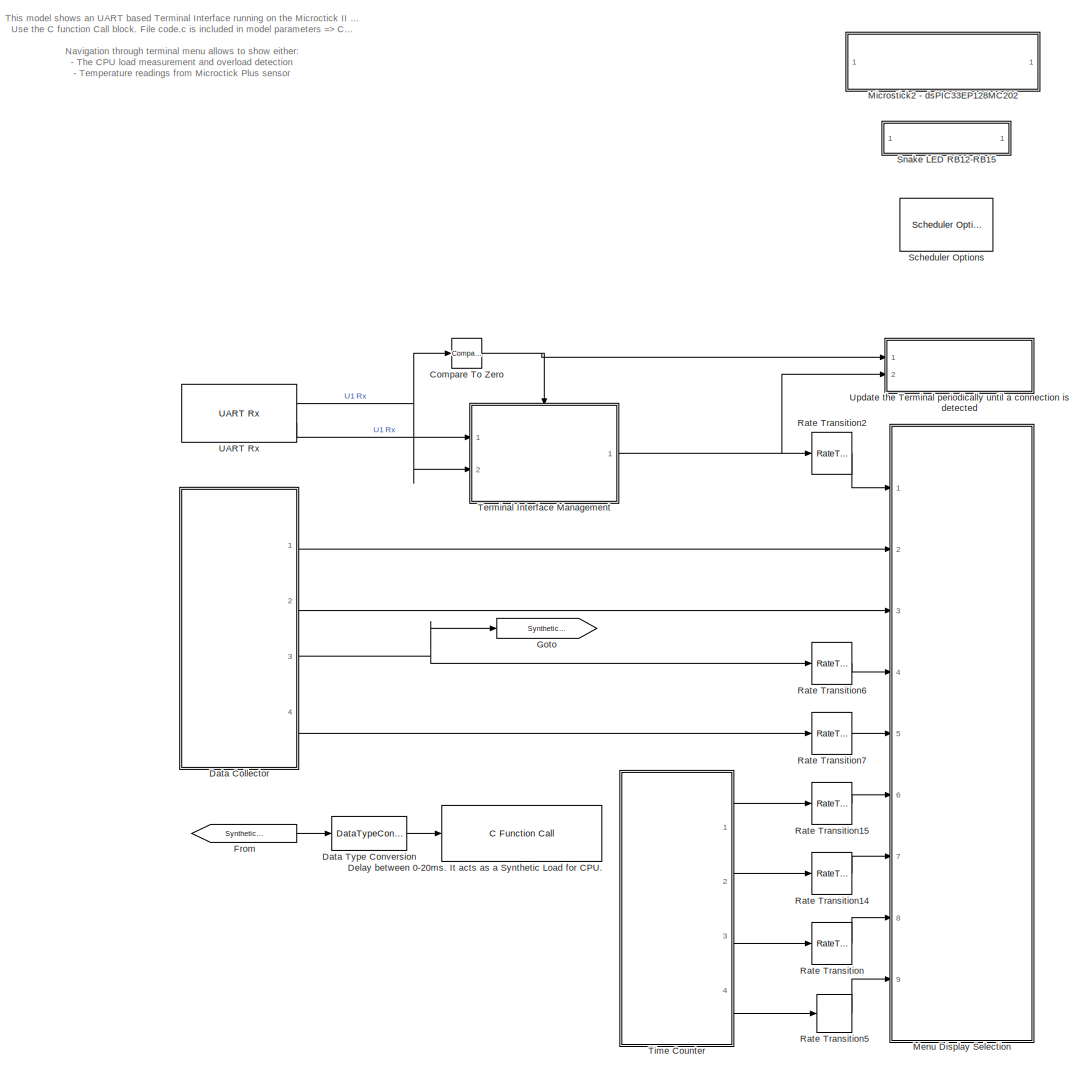
[diagram: root canvas - part 1/1, most of the canvas]
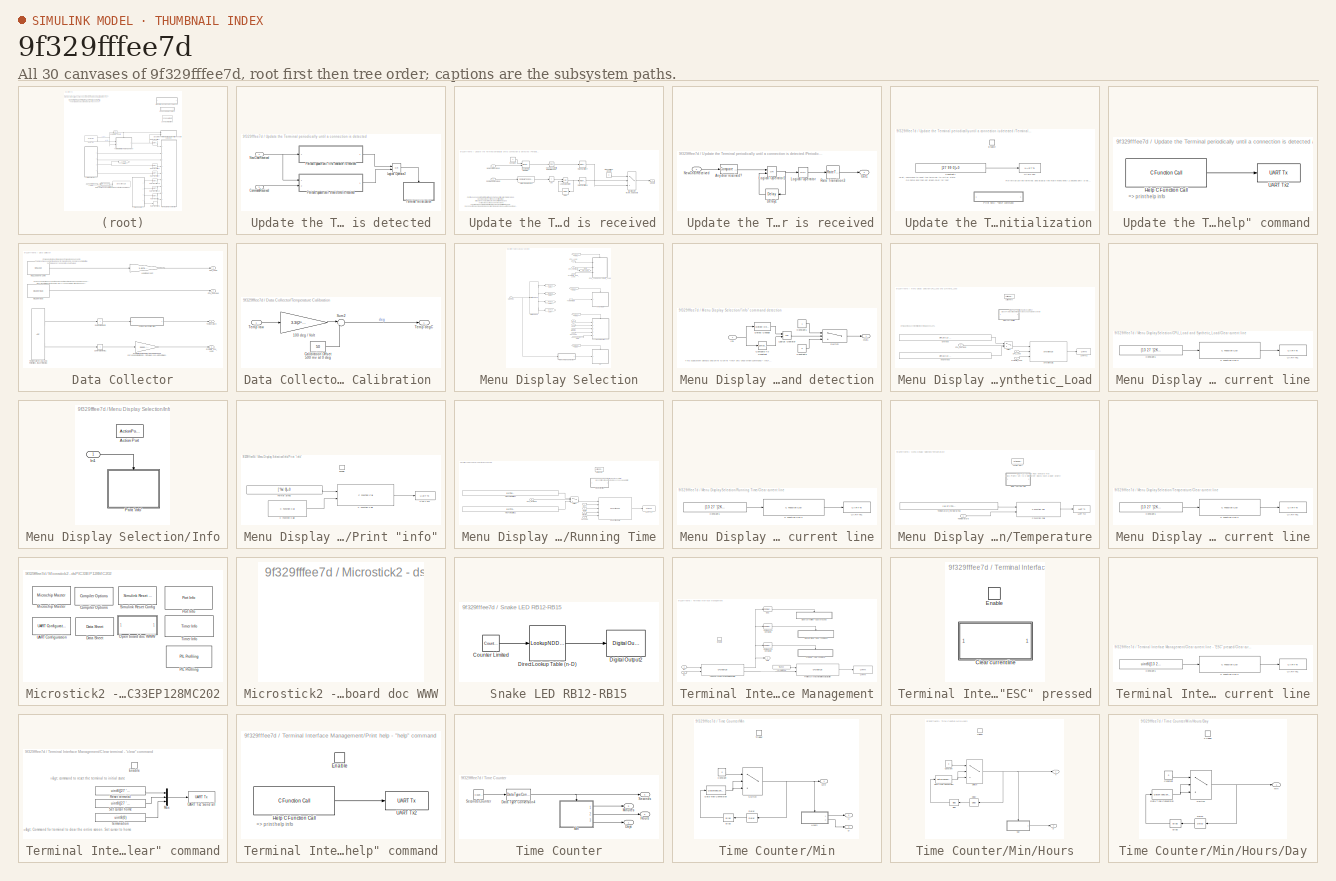
[diagram: thumbnail index - all 30 canvases of the model, root first then tree order]
MODEL slx_9f329fffee7d
KIND model
CONFIG AbsTol = auto
CONFIG EnableMultiTasking = on
CONFIG FixedStep = 0.01
CONFIG MaxStep = auto
CONFIG MinStep = auto
CONFIG RelTol = 1e-3
CONFIG SampleTimeConstraint = Unconstrained
CONFIG Solver = FixedStepDiscrete
CONFIG SolverName = FixedStepDiscrete
CONFIG StartTime = 0.0
CONFIG StopTime = inf
BLOCK [SubSystem]  Update the Terminal periodically until a connection is detected 
  Ports = [2]
  RequestExecContextInheritance = off
BLOCK [Inport]  Update the Terminal periodically until a connection is detected /CommandReceived
  Port = 2
BLOCK [Logic]  Update the Terminal periodically until a connection is detected /Logical Operator2
  AllPortsSameDT = off
  Operator = OR
  OutDataTypeStr = boolean
  Ports = [2, 1]
BLOCK [Inport]  Update the Terminal periodically until a connection is detected /NewCharReceived
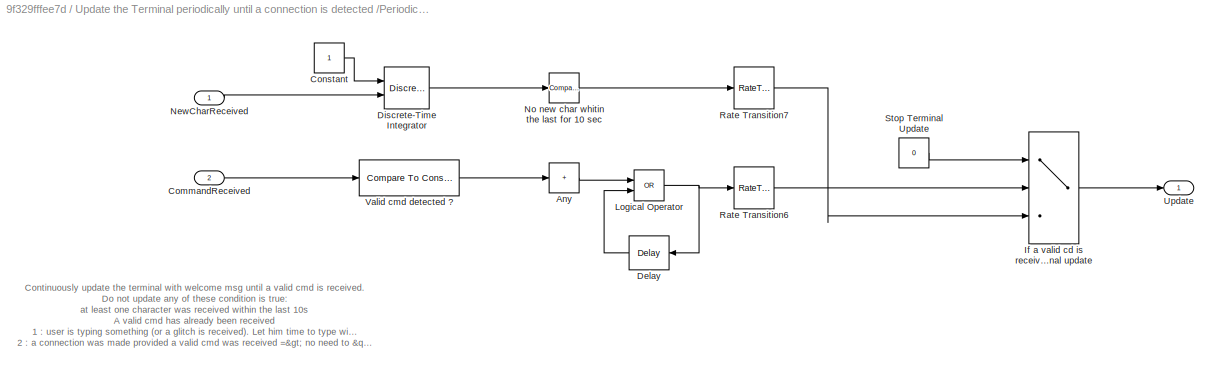
BLOCK [SubSystem]  Update the Terminal periodically until a connection is detected /Periodic update until a valid cmd is received
  Ports = [2, 1]
  RequestExecContextInheritance = off
BLOCK [Sum]  Update the Terminal periodically until a connection is detected /Periodic update until a valid cmd is received/Any
  IconShape = rectangular
  Inputs = +
  Ports = [1, 1]
BLOCK [Inport]  Update the Terminal periodically until a connection is detected /Periodic update until a valid cmd is received/CommandReceived
  Port = 2
BLOCK [Constant]  Update the Terminal periodically until a connection is detected /Periodic update until a valid cmd is received/Constant
  OutDataTypeStr = uint16
  SampleTime = .01
BLOCK [Delay]  Update the Terminal periodically until a connection is detected /Periodic update until a valid cmd is received/Delay
  DelayLength = 1
  InitialCondition = 0
  InputPortMap = u0
  Ports = [1, 1]
BLOCK [DiscreteIntegrator]  Update the Terminal periodically until a connection is detected /Periodic update until a valid cmd is received/Discrete-Time Integrator
  ExternalReset = level
  ICPrevOutput = DiscIntNeverNeededParam
  ICPrevScaledInput = DiscIntNeverNeededParam
  InitialConditionSetting = State (most efficient)
  OutDataTypeStr = fixdt(0,16)
  OutMax = [10]
  Ports = [2, 1]
  SampleTime = -1
  SaturateOnIntegerOverflow = on
  gainval = 1
BLOCK [Switch]  Update the Terminal periodically until a connection is detected /Periodic update until a valid cmd is received/If a valid cd is received, then disable the trigger for terminal update
  Criteria = u2 > Threshold
  InputSameDT = off
  SaturateOnIntegerOverflow = off
BLOCK [Logic]  Update the Terminal periodically until a connection is detected /Periodic update until a valid cmd is received/Logical Operator
  AllPortsSameDT = off
  Operator = OR
  OutDataTypeStr = boolean
  Ports = [2, 1]
BLOCK [Inport]  Update the Terminal periodically until a connection is detected /Periodic update until a valid cmd is received/NewCharReceived
BLOCK [Reference]  Update the Terminal periodically until a connection is detected /Periodic update until a valid cmd is received/No new char whitin the last for 10 sec  REF=simulink/Logic and Bit
Operations/Compare
To Constant
  Ports = [1, 1]
  SourceBlock = simulink/Logic and Bit\nOperations/Compare\nTo Constant
  SourceProductBaseCode = SL
  SourceType = Compare To Constant
BLOCK [RateTransition]  Update the Terminal periodically until a connection is detected /Periodic update until a valid cmd is received/Rate Transition6
  Deterministic = off
  Integrity = off
  OutPortSampleTime = 2
BLOCK [RateTransition]  Update the Terminal periodically until a connection is detected /Periodic update until a valid cmd is received/Rate Transition7
  Deterministic = off
  Integrity = off
  OutPortSampleTime = 2
BLOCK [Constant]  Update the Terminal periodically until a connection is detected /Periodic update until a valid cmd is received/Stop Terminal Update
  OutDataTypeStr = uint16
  SampleTime = -1
  Value = 0
BLOCK [Outport]  Update the Terminal periodically until a connection is detected /Periodic update until a valid cmd is received/Update
  VectorParamsAs1DForOutWhenUnconnected = off
BLOCK [Reference]  Update the Terminal periodically until a connection is detected /Periodic update until a valid cmd is received/Valid cmd detected ?  REF=simulink/Logic and Bit
Operations/Compare
To Constant
  Ports = [1, 1]
  SourceBlock = simulink/Logic and Bit\nOperations/Compare\nTo Constant
  SourceProductBaseCode = SL
  SourceType = Compare To Constant
BLOCK [SubSystem]  Update the Terminal periodically until a connection is detected /Periodic update until first character is received
  Ports = [1, 1]
  RequestExecContextInheritance = off
BLOCK [Reference]  Update the Terminal periodically until a connection is detected /Periodic update until first character is received/Any char received?  REF=simulink/Logic and Bit
Operations/Compare
To Constant
  Ports = [1, 1]
  SourceBlock = simulink/Logic and Bit\nOperations/Compare\nTo Constant
  SourceProductBaseCode = SL
  SourceType = Compare To Constant
BLOCK [Delay]  Update the Terminal periodically until a connection is detected /Periodic update until first character is received/Delay1
  DelayLength = 1
  InitialCondition = 0
  InputPortMap = u0
  Ports = [1, 1]
BLOCK [Logic]  Update the Terminal periodically until a connection is detected /Periodic update until first character is received/Logical Operator
  AllPortsSameDT = off
  Operator = NOT
  OutDataTypeStr = boolean
  Ports = [1, 1]
BLOCK [Logic]  Update the Terminal periodically until a connection is detected /Periodic update until first character is received/Logical Operator1
  AllPortsSameDT = off
  Operator = OR
  OutDataTypeStr = boolean
  Ports = [2, 1]
BLOCK [Inport]  Update the Terminal periodically until a connection is detected /Periodic update until first character is received/NewCharReceived
BLOCK [Outport]  Update the Terminal periodically until a connection is detected /Periodic update until first character is received/Out1
  VectorParamsAs1DForOutWhenUnconnected = off
BLOCK [RateTransition]  Update the Terminal periodically until a connection is detected /Periodic update until first character is received/Rate Transition3
  Deterministic = off
  Integrity = off
  OutPortSampleTime = 2
BLOCK [SubSystem]  Update the Terminal periodically until a connection is detected /Terminal Initialization
  Ports = [0, 0, 1]
  Priority = 2
  RequestExecContextInheritance = off
BLOCK [Constant]  Update the Terminal periodically until a connection is detected /Terminal Initialization/Constant7
  LockScale = on
  OutDataTypeStr = int8
  Priority = 0
  Value = [27 99  0]+0
BLOCK [EnablePort]  Update the Terminal periodically until a connection is detected /Terminal Initialization/Enable
  Ports = []
BLOCK [SubSystem]  Update the Terminal periodically until a connection is detected /Terminal Initialization/Print help - "help" command
  Ports = []
  Priority = 99
  RequestExecContextInheritance = off
BLOCK [Reference]  Update the Terminal periodically until a connection is detected /Terminal Initialization/Print help - "help" command/Help C Function Call  REF=MCHP_Blockset/User Functions/C Function Call
  Ports = [0, 1]
  Priority = 0
  SourceBlock = MCHP_Blockset/User Functions/C Function Call
  SourceProductName = MPLAB® Device Blocks for Simulink®
  SourceType = C Function Call
  UserDataPersistent = on
BLOCK [Reference]  Update the Terminal periodically until a connection is detected /Terminal Initialization/Print help - "help" command/UART Tx2  REF=MCHP_Blockset/BUS UART/UART Tx
  Ports = [1]
  SourceBlock = MCHP_Blockset/BUS UART/UART Tx
  SourceProductName = MPLAB® Device Blocks for Simulink®
  SourceType = UART Tx Output Driver
BLOCK [Reference]  Update the Terminal periodically until a connection is detected /Terminal Initialization/UART Tx1  REF=MCHP_Blockset/BUS UART/UART Tx
  Ports = [1]
  SourceBlock = MCHP_Blockset/BUS UART/UART Tx
  SourceProductName = MPLAB® Device Blocks for Simulink®
  SourceType = UART Tx Output Driver
BLOCK [Reference] Compare To Zero  REF=simulink/Logic and Bit
Operations/Compare
To Zero
  Ports = [1, 1]
  SourceBlock = simulink/Logic and Bit\nOperations/Compare\nTo Zero
  SourceProductBaseCode = SL
  SourceType = Compare To Zero
BLOCK [SubSystem] Data Collector
  Ports = [0, 4]
  RequestExecContextInheritance = off
BLOCK [Outport] Data Collector/CPU_Load
  VectorParamsAs1DForOutWhenUnconnected = off
BLOCK [Outport] Data Collector/CPU_Overload
  Port = 2
  VectorParamsAs1DForOutWhenUnconnected = off
BLOCK [Gain] Data Collector/Load in percent
  Gain = 3.657e-6 / .2 * 100
  OutDataTypeStr = single
  OutMax = [20]
  OutMin = [0]
  ParamDataTypeStr = Inherit: Inherit from 'Gain'
BLOCK [Reference] Data Collector/MCU Load over 10ms  REF=MCHP_Blockset/Profiling/MCU Load
  Ports = [0, 1]
  SourceBlock = MCHP_Blockset/Profiling/MCU Load
  SourceProductName = MPLAB® Device Blocks for Simulink®
  SourceType = MCU Load (Profile execution time)
BLOCK [Reference] Data Collector/MCU Overload  REF=MCHP_Blockset/Profiling/MCU Overload
  Ports = [0, 1]
  SourceBlock = MCHP_Blockset/Profiling/MCU Overload
  SourceProductName = MPLAB® Device Blocks for Simulink®
  SourceType = MCU Over-Load (Profile execution time)
BLOCK [Sum] Data Collector/Sum 64 Elements
  IconShape = rectangular
  Inputs = +
  Ports = [1, 1]
BLOCK [Sum] Data Collector/Sum 64 Elements1
  IconShape = rectangular
  Inputs = +
  Ports = [1, 1]
BLOCK [Gain] Data Collector/Synthetic CPU load Max ADC value is 65535 corresponding to 20 000us 65535(Max ADC Value) = 1024(10bit ADC value) * 64(ADC samples)
  Gain = 20000 / 65535
  OutDataTypeStr = uint16
BLOCK [Outport] Data Collector/Synthetic_CPU_Load
  Port = 3
  VectorParamsAs1DForOutWhenUnconnected = off
BLOCK [Outport] Data Collector/Temperature
  Port = 4
  VectorParamsAs1DForOutWhenUnconnected = off
BLOCK [Reference] Data Collector/Temperature (AN1) and Potentiometer (AN0) 64 X 2 Sample&Convert at each Time step  REF=MCHP_Blockset/Analog IO/ADC
  Ports = [0, 2]
  Priority = 5
  SourceBlock = MCHP_Blockset/Analog IO/ADC
  SourceProductName = MPLAB® Device Blocks for Simulink®
BLOCK [SubSystem] Data Collector/Temperature Calibration 
  Ports = [1, 1]
  RequestExecContextInheritance = off
BLOCK [Gain] Data Collector/Temperature Calibration /100 deg // Volt 
  Gain = 3.3/(2^16) * 100
  OutDataTypeStr = single
BLOCK [Constant] Data Collector/Temperature Calibration /Calibration Offset 500 mv at 0 deg
  OutDataTypeStr = Inherit: Inherit via back propagation
  SampleTime = -1
  Value = 50
BLOCK [Sum] Data Collector/Temperature Calibration /Sum2
  AccumDataTypeStr = Inherit: Same as first input
  Inputs = |+-
  OutDataTypeStr = Inherit: Same as first input
  Ports = [2, 1]
BLOCK [Outport] Data Collector/Temperature Calibration /Temp degC
  VectorParamsAs1DForOutWhenUnconnected = off
BLOCK [Inport] Data Collector/Temperature Calibration /Temp raw
BLOCK [DataTypeConversion] Data Type Conversion
  RndMeth = Floor
  SaturateOnIntegerOverflow = off
BLOCK [Reference] Delay between 0-20ms. It acts as a Synthetic Load for CPU.  REF=MCHP_Blockset/User Functions/C Function Call
  Ports = [1]
  SourceBlock = MCHP_Blockset/User Functions/C Function Call
  SourceProductName = MPLAB® Device Blocks for Simulink®
  SourceType = C Function Call
  UserDataPersistent = on
BLOCK [From] From
  GotoTag = SyntheticLoad
BLOCK [Goto] Goto
  GotoTag = SyntheticLoad
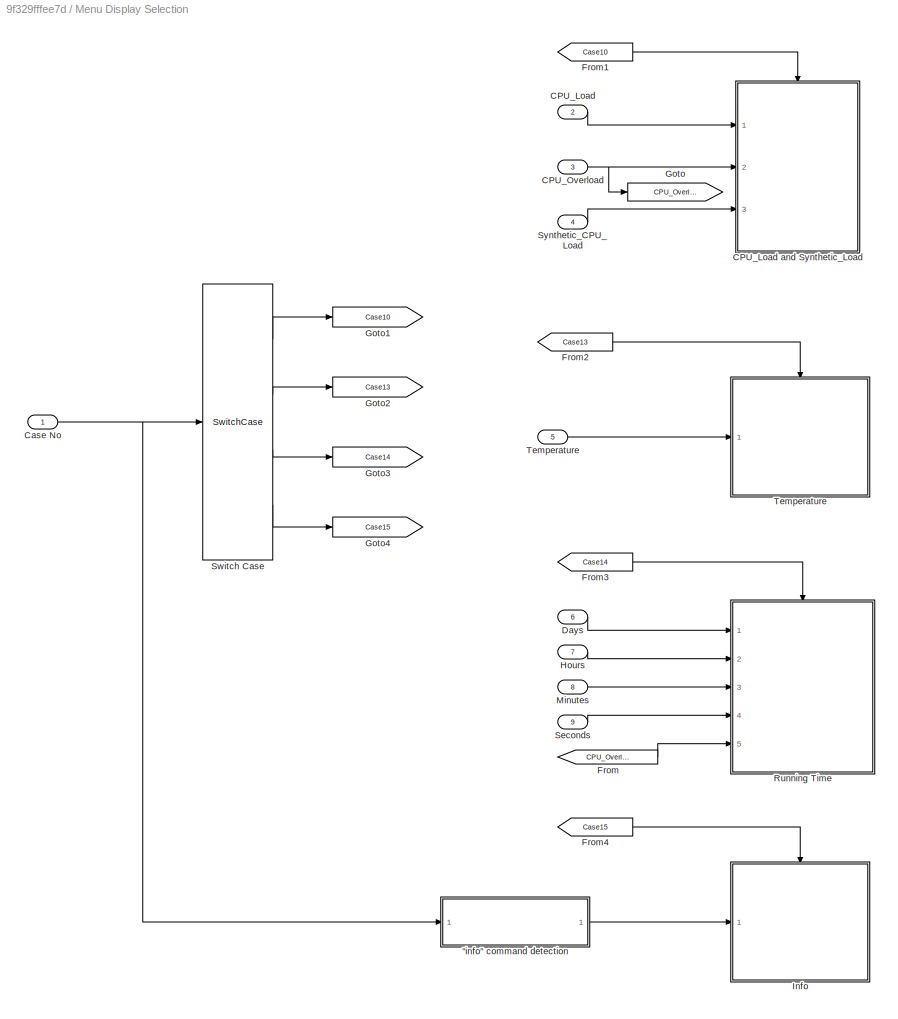
BLOCK [SubSystem] Menu Display Selection
  Ports = [9]
  RequestExecContextInheritance = off
  SystemSampleTime = 0.2
  TreatAsAtomicUnit = on
BLOCK [SubSystem] Menu Display Selection/"info" command detection
  Ports = [1, 1]
  RequestExecContextInheritance = off
BLOCK [Reference] Menu Display Selection/"info" command detection/Compare To Constant  REF=simulink/Logic and Bit
Operations/Compare
To Constant
  Ports = [1, 1]
  SourceBlock = simulink/Logic and Bit\nOperations/Compare\nTo Constant
  SourceProductBaseCode = SL
  SourceType = Compare To Constant
BLOCK [Constant] Menu Display Selection/"info" command detection/Constant1
  OutDataTypeStr = uint16
BLOCK [Constant] Menu Display Selection/"info" command detection/Constant2
  OutDataTypeStr = uint16
  Value = 0
BLOCK [Reference] Menu Display Selection/"info" command detection/Detect Change  REF=simulink/Logic and Bit
Operations/Detect
Change
  Ports = [1, 1]
  SourceBlock = simulink/Logic and Bit\nOperations/Detect\nChange
  SourceProductBaseCode = SL
  SourceType = Detect Change
BLOCK [Inport] Menu Display Selection/"info" command detection/In1
BLOCK [Logic] Menu Display Selection/"info" command detection/Logical Operator
  AllPortsSameDT = off
  OutDataTypeStr = boolean
  Ports = [2, 1]
BLOCK [Outport] Menu Display Selection/"info" command detection/Out1
  VectorParamsAs1DForOutWhenUnconnected = off
BLOCK [Switch] Menu Display Selection/"info" command detection/Switch
  Criteria = u2 > Threshold
  InputSameDT = off
  SaturateOnIntegerOverflow = off
BLOCK [Inport] Menu Display Selection/CPU_Load
  Port = 2
BLOCK [SubSystem] Menu Display Selection/CPU_Load and Synthetic_Load
  Ports = [3, 0, 0, 0, 0, 0, 0, 1]
  RequestExecContextInheritance = off
  TreatAsAtomicUnit = on
BLOCK [ActionPort] Menu Display Selection/CPU_Load and Synthetic_Load/Action Port
BLOCK [Reference] Menu Display Selection/CPU_Load and Synthetic_Load/C Function Call1  REF=MCHP_Blockset/User Functions/C Function Call
  Ports = [3, 1]
  Priority = 20
  SourceBlock = MCHP_Blockset/User Functions/C Function Call
  SourceProductName = MPLAB® Device Blocks for Simulink®
  SourceType = C Function Call
  UserDataPersistent = on
BLOCK [Inport] Menu Display Selection/CPU_Load and Synthetic_Load/CPU_Load
BLOCK [Inport] Menu Display Selection/CPU_Load and Synthetic_Load/CPU_Overload
  Port = 2
BLOCK [SubSystem] Menu Display Selection/CPU_Load and Synthetic_Load/Clear current line
  Ports = []
  Priority = 0
  RequestExecContextInheritance = off
  TreatAsAtomicUnit = on
BLOCK [Reference] Menu Display Selection/CPU_Load and Synthetic_Load/Clear current line/C Function Call2  REF=MCHP_Blockset/User Functions/C Function Call
  Ports = [1, 1]
  SourceBlock = MCHP_Blockset/User Functions/C Function Call
  SourceProductName = MPLAB® Device Blocks for Simulink®
  SourceType = C Function Call
  UserDataPersistent = on
BLOCK [Constant] Menu Display Selection/CPU_Load and Synthetic_Load/Clear current line/Constant1
  LockScale = on
  OutDataTypeStr = uint8
  Value = [13 27 '[2K' 0]+0
BLOCK [Reference] Menu Display Selection/CPU_Load and Synthetic_Load/Clear current line/UART Tx1  REF=MCHP_Blockset/BUS UART/UART Tx
  Ports = [1]
  SourceBlock = MCHP_Blockset/BUS UART/UART Tx
  SourceProductName = MPLAB® Device Blocks for Simulink®
  SourceType = UART Tx Output Driver
BLOCK [Constant] Menu Display Selection/CPU_Load and Synthetic_Load/No Overload
  LockScale = on
  OutDataTypeStr = int8
  Value = uint16([13 27 '[7;40;32mCPU Load:%3.3f%% |  Synthetic Load(us):%u (TS = 10ms) | <ESC> to exit     ' 27 '[27m'  0])
BLOCK [Constant] Menu Display Selection/CPU_Load and Synthetic_Load/Overload
  LockScale = on
  OutDataTypeStr = int8
  Value = uint16([13 27 '[30;45mCPU OverLoad:%3.3f%% |  Synthetic Load(us):%u (TS = 10ms) | <ESC> to exit' 27 '[32;40m'  0])
BLOCK [Switch] Menu Display Selection/CPU_Load and Synthetic_Load/Switch
  Criteria = u2 ~= 0
  InputSameDT = off
  SaturateOnIntegerOverflow = off
BLOCK [Inport] Menu Display Selection/CPU_Load and Synthetic_Load/Syntheticl_Load
  Port = 3
BLOCK [Reference] Menu Display Selection/CPU_Load and Synthetic_Load/UART Tx2  REF=MCHP_Blockset/BUS UART/UART Tx
  Ports = [1]
  SourceBlock = MCHP_Blockset/BUS UART/UART Tx
  SourceProductName = MPLAB® Device Blocks for Simulink®
  SourceType = UART Tx Output Driver
BLOCK [Inport] Menu Display Selection/CPU_Overload
  Port = 3
BLOCK [Inport] Menu Display Selection/Case No
BLOCK [Inport] Menu Display Selection/Days
  Port = 6
BLOCK [From] Menu Display Selection/From
  GotoTag = CPU_Overload
BLOCK [From] Menu Display Selection/From1
  GotoTag = Case10
BLOCK [From] Menu Display Selection/From2
  GotoTag = Case13
BLOCK [From] Menu Display Selection/From3
  GotoTag = Case14
BLOCK [From] Menu Display Selection/From4
  GotoTag = Case15
BLOCK [Goto] Menu Display Selection/Goto
  GotoTag = CPU_Overload
BLOCK [Goto] Menu Display Selection/Goto1
  GotoTag = Case10
BLOCK [Goto] Menu Display Selection/Goto2
  GotoTag = Case13
BLOCK [Goto] Menu Display Selection/Goto3
  GotoTag = Case14
BLOCK [Goto] Menu Display Selection/Goto4
  GotoTag = Case15
BLOCK [Inport] Menu Display Selection/Hours
  Port = 7
BLOCK [SubSystem] Menu Display Selection/Info
  Ports = [1, 0, 0, 0, 0, 0, 0, 1]
  RequestExecContextInheritance = off
  TreatAsAtomicUnit = on
BLOCK [ActionPort] Menu Display Selection/Info/Action Port
BLOCK [Inport] Menu Display Selection/Info/In1
BLOCK [SubSystem] Menu Display Selection/Info/Print "info"
  Ports = [0, 0, 1]
  RequestExecContextInheritance = off
BLOCK [Constant] Menu Display Selection/Info/Print "info"/ Format String
  LockScale = on
  OutDataTypeStr = int8
  Value = ['%s' 0]+0
BLOCK [Reference] Menu Display Selection/Info/Print "info"/C Function Call1  REF=MCHP_Blockset/User Functions/C Function Call
  Ports = [2, 1]
  SourceBlock = MCHP_Blockset/User Functions/C Function Call
  SourceProductName = MPLAB® Device Blocks for Simulink®
  SourceType = C Function Call
  UserDataPersistent = on
BLOCK [Reference] Menu Display Selection/Info/Print "info"/C Function Call2  REF=MCHP_Blockset/User Functions/C Function Call
  Ports = [0, 1]
  SourceBlock = MCHP_Blockset/User Functions/C Function Call
  SourceProductName = MPLAB® Device Blocks for Simulink®
  SourceType = C Function Call
  UserDataPersistent = on
BLOCK [EnablePort] Menu Display Selection/Info/Print "info"/Enable
  Ports = []
BLOCK [Reference] Menu Display Selection/Info/Print "info"/UART Tx2  REF=MCHP_Blockset/BUS UART/UART Tx
  Ports = [1]
  SourceBlock = MCHP_Blockset/BUS UART/UART Tx
  SourceProductName = MPLAB® Device Blocks for Simulink®
  SourceType = UART Tx Output Driver
BLOCK [Inport] Menu Display Selection/Minutes
  Port = 8
BLOCK [SubSystem] Menu Display Selection/Running Time
  Ports = [5, 0, 0, 0, 0, 0, 0, 1]
  RequestExecContextInheritance = off
  TreatAsAtomicUnit = on
BLOCK [ActionPort] Menu Display Selection/Running Time/Action Port
BLOCK [Reference] Menu Display Selection/Running Time/C Function Call1  REF=MCHP_Blockset/User Functions/C Function Call
  Ports = [5, 1]
  SourceBlock = MCHP_Blockset/User Functions/C Function Call
  SourceProductName = MPLAB® Device Blocks for Simulink®
  SourceType = C Function Call
  UserDataPersistent = on
BLOCK [Inport] Menu Display Selection/Running Time/CPU_Overload
  Port = 5
BLOCK [SubSystem] Menu Display Selection/Running Time/Clear current line
  Ports = []
  Priority = 0
  RequestExecContextInheritance = off
  TreatAsAtomicUnit = on
BLOCK [Reference] Menu Display Selection/Running Time/Clear current line/C Function Call2  REF=MCHP_Blockset/User Functions/C Function Call
  Ports = [1, 1]
  SourceBlock = MCHP_Blockset/User Functions/C Function Call
  SourceProductName = MPLAB® Device Blocks for Simulink®
  SourceType = C Function Call
  UserDataPersistent = on
BLOCK [Constant] Menu Display Selection/Running Time/Clear current line/Constant1
  LockScale = on
  OutDataTypeStr = uint8
  Value = [13 27 '[2K' 0]+0
BLOCK [Reference] Menu Display Selection/Running Time/Clear current line/UART Tx1  REF=MCHP_Blockset/BUS UART/UART Tx
  Ports = [1]
  SourceBlock = MCHP_Blockset/BUS UART/UART Tx
  SourceProductName = MPLAB® Device Blocks for Simulink®
  SourceType = UART Tx Output Driver
BLOCK [Inport] Menu Display Selection/Running Time/Days
BLOCK [Inport] Menu Display Selection/Running Time/Hours
  Port = 2
BLOCK [Inport] Menu Display Selection/Running Time/Minutes
  Port = 3
BLOCK [Inport] Menu Display Selection/Running Time/Seconds
  Port = 4
BLOCK [Switch] Menu Display Selection/Running Time/Switch
  Criteria = u2 ~= 0
  InputSameDT = off
  SaturateOnIntegerOverflow = off
BLOCK [Constant] Menu Display Selection/Running Time/Time Format String1
  LockScale = on
  OutDataTypeStr = int8
  Value = [13 27 '[30;45mRunning Time: %udays : %02uh : %02umin : %02usec |<ESC>| OVERLOAD! ' 27 '[32;40m'  0]+0
BLOCK [Constant] Menu Display Selection/Running Time/Time Format String2
  LockScale = on
  OutDataTypeStr = int8
  Value = [13 27 '[7mRunning Time: %udays : %02uh : %02umin : %02usec | Press <ESC> to exit    ' 27 '[27m'  0]+0
BLOCK [Reference] Menu Display Selection/Running Time/UART Tx2  REF=MCHP_Blockset/BUS UART/UART Tx
  Ports = [1]
  SourceBlock = MCHP_Blockset/BUS UART/UART Tx
  SourceProductName = MPLAB® Device Blocks for Simulink®
  SourceType = UART Tx Output Driver
BLOCK [Inport] Menu Display Selection/Seconds
  Port = 9
BLOCK [SwitchCase] Menu Display Selection/Switch Case
  CaseConditions = {10,13,14,15}
  Ports = [1, 4]
  ShowDefaultCase = off
BLOCK [Inport] Menu Display Selection/Synthetic_CPU_Load
  Port = 4
BLOCK [SubSystem] Menu Display Selection/Temperature
  Ports = [1, 0, 0, 0, 0, 0, 0, 1]
  RequestExecContextInheritance = off
  TreatAsAtomicUnit = on
BLOCK [Inport] Menu Display Selection/Temperature 
  Port = 5
BLOCK [ActionPort] Menu Display Selection/Temperature/Action Port
BLOCK [Reference] Menu Display Selection/Temperature/C Function Call1  REF=MCHP_Blockset/User Functions/C Function Call
  Ports = [2, 1]
  SourceBlock = MCHP_Blockset/User Functions/C Function Call
  SourceProductName = MPLAB® Device Blocks for Simulink®
  SourceType = C Function Call
  UserDataPersistent = on
BLOCK [SubSystem] Menu Display Selection/Temperature/Clear current line
  Ports = []
  Priority = 0
  RequestExecContextInheritance = off
  TreatAsAtomicUnit = on
BLOCK [Reference] Menu Display Selection/Temperature/Clear current line/C Function Call2  REF=MCHP_Blockset/User Functions/C Function Call
  Ports = [1, 1]
  SourceBlock = MCHP_Blockset/User Functions/C Function Call
  SourceProductName = MPLAB® Device Blocks for Simulink®
  SourceType = C Function Call
  UserDataPersistent = on
BLOCK [Constant] Menu Display Selection/Temperature/Clear current line/Constant1
  LockScale = on
  OutDataTypeStr = uint8
  Value = [13 27 '[2K' 0]+0
BLOCK [Reference] Menu Display Selection/Temperature/Clear current line/UART Tx1  REF=MCHP_Blockset/BUS UART/UART Tx
  Ports = [1]
  SourceBlock = MCHP_Blockset/BUS UART/UART Tx
  SourceProductName = MPLAB® Device Blocks for Simulink®
  SourceType = UART Tx Output Driver
BLOCK [Inport] Menu Display Selection/Temperature/Temperature
BLOCK [Constant] Menu Display Selection/Temperature/Temperature_FormatString
  LockScale = on
  OutDataTypeStr = int8
  Value = [13 27 '[7m Temperature: %3.3f *C  Press <ESC> to exit' 27 '[27m'  0]+0
BLOCK [Reference] Menu Display Selection/Temperature/UART Tx2  REF=MCHP_Blockset/BUS UART/UART Tx
  Ports = [1]
  SourceBlock = MCHP_Blockset/BUS UART/UART Tx
  SourceProductName = MPLAB® Device Blocks for Simulink®
  SourceType = UART Tx Output Driver
BLOCK [SubSystem] Microstick2 - dsPIC33EP128MC202
  Ports = []
  RequestExecContextInheritance = off
BLOCK [Reference] Microstick2 - dsPIC33EP128MC202/Compiler Options  REF=MCHP_Blockset/System Configuration/Compiler Options
  Ports = []
  Priority = 1
  SourceBlock = MCHP_Blockset/System Configuration/Compiler Options
  SourceProductName = MPLAB® Device Blocks for Simulink®
BLOCK [Reference] Microstick2 - dsPIC33EP128MC202/Data Sheet  REF=MCHP_Blockset/System Info/Data Sheet
  AttributesFormatString = %<cpy_MCHP_Id>
  Ports = []
  SourceBlock = MCHP_Blockset/System Info/Data Sheet
  SourceProductName = MPLAB® Device Blocks for Simulink®
BLOCK [Reference] Microstick2 - dsPIC33EP128MC202/Microchip Master  REF=MCHP_Blockset/System Configuration/Microchip Master
  Ports = []
  Priority = 1
  SourceBlock = MCHP_Blockset/System Configuration/Microchip Master
  SourceProductName = MPLAB® Device Blocks for Simulink®
BLOCK [SubSystem] Microstick2 - dsPIC33EP128MC202/Open board doc WWW
  OpenFcn = web('www.microchip.com/www.microchip.com/en556208','-browser');\npause(1);\nweb('www.microchip.com/TCAD0014178791','-browser');
  Ports = []
  RequestExecContextInheritance = off
BLOCK [Reference] Microstick2 - dsPIC33EP128MC202/PIL Profiling  REF=MCHP_Blockset/Profiling/PIL Profiling
  Ports = []
  SourceBlock = MCHP_Blockset/Profiling/PIL Profiling
  SourceProductName = MPLAB® Device Blocks for Simulink®
  SourceType = Timer Configuration
BLOCK [Reference] Microstick2 - dsPIC33EP128MC202/Port Info  REF=MCHP_Blockset/System Info/Port Info
  Ports = []
  SourceBlock = MCHP_Blockset/System Info/Port Info
  SourceProductName = MPLAB® Device Blocks for Simulink®
BLOCK [Reference] Microstick2 - dsPIC33EP128MC202/Simulink Reset Config  REF=MCHP_Blockset/System Configuration/Simulink Reset
Config
  Ports = []
  SourceBlock = MCHP_Blockset/System Configuration/Simulink Reset\nConfig
  SourceProductName = MPLAB® Device Blocks for Simulink®
BLOCK [Reference] Microstick2 - dsPIC33EP128MC202/Timer Info  REF=MCHP_Blockset/System Info/Timer Info
  Ports = []
  SourceBlock = MCHP_Blockset/System Info/Timer Info
  SourceProductName = MPLAB® Device Blocks for Simulink®
BLOCK [Reference] Microstick2 - dsPIC33EP128MC202/UART Configuration  REF=MCHP_Blockset/BUS UART/UART Configuration
  Ports = []
  SourceBlock = MCHP_Blockset/BUS UART/UART Configuration
  SourceProductName = MPLAB® Device Blocks for Simulink®
  SourceType = Configuration for UART peripheral
BLOCK [RateTransition] Rate Transition
  Deterministic = off
  OutPortSampleTimeOpt = Inherit
BLOCK [RateTransition] Rate Transition14
  Deterministic = off
  OutPortSampleTimeOpt = Inherit
BLOCK [RateTransition] Rate Transition15
  Deterministic = off
  OutPortSampleTimeOpt = Inherit
BLOCK [RateTransition] Rate Transition2
  Deterministic = off
  OutPortSampleTimeOpt = Inherit
BLOCK [RateTransition] Rate Transition5
  Deterministic = off
  OutPortSampleTimeOpt = Inherit
BLOCK [RateTransition] Rate Transition6
  Deterministic = off
  OutPortSampleTimeOpt = Inherit
BLOCK [RateTransition] Rate Transition7
  Deterministic = off
  OutPortSampleTimeOpt = Inherit
BLOCK [Reference] Scheduler Options  REF=MCHP_Blockset/System Configuration/Scheduler Options
  Ports = []
  SourceBlock = MCHP_Blockset/System Configuration/Scheduler Options
  SourceProductName = MPLAB® Device Blocks for Simulink®
  SourceType = Scheduler Options
BLOCK [SubSystem] Snake LED RB12-RB15
  Ports = []
  RequestExecContextInheritance = off
BLOCK [Reference] Snake LED RB12-RB15/Counter Limited   REF=simulink/Sources/Counter
Limited
  Ports = [0, 1]
  SourceBlock = simulink/Sources/Counter\nLimited
  SourceProductBaseCode = SL
  SourceType = Counter Limited
BLOCK [Reference] Snake LED RB12-RB15/Digital Output2  REF=MCHP_Blockset/Digital IO/Digital Output
  Ports = [1]
  SourceBlock = MCHP_Blockset/Digital IO/Digital Output
  SourceProductName = MPLAB® Device Blocks for Simulink®
BLOCK [LookupNDDirect] Snake LED RB12-RB15/Direct Lookup Table (n-D)
  NumberOfTableDimensions = 1
  Ports = [1, 1]
  Table = [ 32768 16384 8192 4096 8192 16384]
  TableDataTypeStr = uint16
BLOCK [SubSystem] Terminal Interface Management
  Ports = [2, 1, 1]
  RequestExecContextInheritance = off
BLOCK [Reference] Terminal Interface Management/Add every bytes received to the buffer  REF=MCHP_Blockset/User Functions/C Function Call
  Ports = [2, 2]
  Priority = 0
  SourceBlock = MCHP_Blockset/User Functions/C Function Call
  SourceProductName = MPLAB® Device Blocks for Simulink®
  SourceType = C Function Call
  UserDataPersistent = on
BLOCK [SubSystem] Terminal Interface Management/Clear current line - "ESC" pressed
  Ports = [0, 0, 1]
  Priority = 1
  RequestExecContextInheritance = off
  TreatAsAtomicUnit = on
BLOCK [SubSystem] Terminal Interface Management/Clear current line - "ESC" pressed/Clear current line
  Ports = []
  Priority = 0
  RequestExecContextInheritance = off
  TreatAsAtomicUnit = on
BLOCK [Reference] Terminal Interface Management/Clear current line - "ESC" pressed/Clear current line/C Function Call2  REF=MCHP_Blockset/User Functions/C Function Call
  Ports = [1, 1]
  SourceBlock = MCHP_Blockset/User Functions/C Function Call
  SourceProductName = MPLAB® Device Blocks for Simulink®
  SourceType = C Function Call
  UserDataPersistent = on
BLOCK [Constant] Terminal Interface Management/Clear current line - "ESC" pressed/Clear current line/Constant1
  LockScale = on
  OutDataTypeStr = uint8
  Value = uint8([13 27 '[2K' 0])
BLOCK [Reference] Terminal Interface Management/Clear current line - "ESC" pressed/Clear current line/UART Tx1  REF=MCHP_Blockset/BUS UART/UART Tx
  Ports = [1]
  SourceBlock = MCHP_Blockset/BUS UART/UART Tx
  SourceProductName = MPLAB® Device Blocks for Simulink®
  SourceType = UART Tx Output Driver
BLOCK [EnablePort] Terminal Interface Management/Clear current line - "ESC" pressed/Enable
  Ports = []
BLOCK [SubSystem] Terminal Interface Management/Clear terminal - "clear" command
  Ports = [0, 0, 1]
  Priority = 100
  RequestExecContextInheritance = off
BLOCK [EnablePort] Terminal Interface Management/Clear terminal - "clear" command/Enable
  Ports = []
BLOCK [Mux] Terminal Interface Management/Clear terminal - "clear" command/Mux
  DisplayOption = bar
  Inputs = 3
  Ports = [3, 1]
BLOCK [Constant] Terminal Interface Management/Clear terminal - "clear" command/Reset terminal
  LockScale = on
  Priority = 0
  Value = uint8([27 '[2J'])
BLOCK [Constant] Terminal Interface Management/Clear terminal - "clear" command/Set cursor home
  LockScale = on
  Priority = 0
  Value = uint8([27 '[H'])
BLOCK [Reference] Terminal Interface Management/Clear terminal - "clear" command/UART Tx1 Send all  REF=MCHP_Blockset/BUS UART/UART Tx
  Ports = [1]
  SourceBlock = MCHP_Blockset/BUS UART/UART Tx
  SourceProductName = MPLAB® Device Blocks for Simulink®
  SourceType = UART Tx Output Driver
BLOCK [Constant] Terminal Interface Management/Clear terminal - "clear" command/termination
  LockScale = on
  Priority = 0
  Value = uint8(0)
BLOCK [Reference] Terminal Interface Management/Compare To Constant1  REF=simulink/Logic and Bit
Operations/Compare
To Constant
  Ports = [1, 1]
  SourceBlock = simulink/Logic and Bit\nOperations/Compare\nTo Constant
  SourceProductBaseCode = SL
  SourceType = Compare To Constant
BLOCK [Reference] Terminal Interface Management/Compare To Constant2  REF=simulink/Logic and Bit
Operations/Compare
To Constant
  Ports = [1, 1]
  SourceBlock = simulink/Logic and Bit\nOperations/Compare\nTo Constant
  SourceProductBaseCode = SL
  SourceType = Compare To Constant
BLOCK [Reference] Terminal Interface Management/ESC  REF=simulink/Logic and Bit
Operations/Compare
To Constant
  Ports = [1, 1]
  SourceBlock = simulink/Logic and Bit\nOperations/Compare\nTo Constant
  SourceProductBaseCode = SL
  SourceType = Compare To Constant
BLOCK [EnablePort] Terminal Interface Management/Enable
  Ports = []
BLOCK [Constant] Terminal Interface Management/FormatString 
  LockScale = on
  OutDataTypeStr = uint8
  Priority = 15
  Value = ['%s' 0]+0
BLOCK [Inport] Terminal Interface Management/In1
BLOCK [Inport] Terminal Interface Management/In2
  Port = 2
BLOCK [Outport] Terminal Interface Management/Out1
  VectorParamsAs1DForOutWhenUnconnected = off
BLOCK [SubSystem] Terminal Interface Management/Print help - "help" command
  Ports = [0, 0, 1]
  Priority = 99
  RequestExecContextInheritance = off
BLOCK [EnablePort] Terminal Interface Management/Print help - "help" command/Enable
  Ports = []
BLOCK [Reference] Terminal Interface Management/Print help - "help" command/Help C Function Call  REF=MCHP_Blockset/User Functions/C Function Call
  Ports = [0, 1]
  Priority = 0
  SourceBlock = MCHP_Blockset/User Functions/C Function Call
  SourceProductName = MPLAB® Device Blocks for Simulink®
  SourceType = C Function Call
  UserDataPersistent = on
BLOCK [Reference] Terminal Interface Management/Print help - "help" command/UART Tx2  REF=MCHP_Blockset/BUS UART/UART Tx
  Ports = [1]
  SourceBlock = MCHP_Blockset/BUS UART/UART Tx
  SourceProductName = MPLAB® Device Blocks for Simulink®
  SourceType = UART Tx Output Driver
BLOCK [Reference] Terminal Interface Management/Print the current content of the output buffer  REF=MCHP_Blockset/User Functions/C Function Call
  Ports = [2, 1]
  Priority = 16
  SourceBlock = MCHP_Blockset/User Functions/C Function Call
  SourceProductName = MPLAB® Device Blocks for Simulink®
  SourceType = C Function Call
  UserDataPersistent = on
BLOCK [Reference] Terminal Interface Management/UART Tx  REF=MCHP_Blockset/BUS UART/UART Tx
  Ports = [1]
  Priority = 17
  SourceBlock = MCHP_Blockset/BUS UART/UART Tx
  SourceProductName = MPLAB® Device Blocks for Simulink®
  SourceType = UART Tx Output Driver
BLOCK [SubSystem] Time Counter
  Ports = [0, 4]
  RTWSystemCode = Reusable function
  RequestExecContextInheritance = off
  TreatAsAtomicUnit = on
BLOCK [DataTypeConversion] Time Counter/Data Type Conversion4
  ConvertRealWorld = Stored Integer (SI)
  OutDataTypeStr = uint16
  RndMeth = Floor
  SaturateOnIntegerOverflow = off
BLOCK [Outport] Time Counter/Days
  VectorParamsAs1DForOutWhenUnconnected = off
BLOCK [Outport] Time Counter/Hours
  Port = 2
  VectorParamsAs1DForOutWhenUnconnected = off
BLOCK [SubSystem] Time Counter/Min
  Ports = [0, 3, 0, 1]
  RequestExecContextInheritance = off
BLOCK [Bias] Time Counter/Min/Bias
  Bias = 1
  SaturateOnIntegerOverflow = off
BLOCK [Constant] Time Counter/Min/Constant
  OutDataTypeStr = uint16
  Value = 0
BLOCK [Outport] Time Counter/Min/D
  Port = 3
  VectorParamsAs1DForOutWhenUnconnected = off
BLOCK [DataTypeConversion] Time Counter/Min/Data Type Conversion
  OutDataTypeStr = uint16
  RndMeth = Floor
  SaturateOnIntegerOverflow = off
BLOCK [Delay] Time Counter/Min/Delay
  DelayLength = 1
  InitialCondition = 0
  InputPortMap = u0
  Ports = [1, 1]
BLOCK [Outport] Time Counter/Min/H
  Port = 2
  VectorParamsAs1DForOutWhenUnconnected = off
BLOCK [SubSystem] Time Counter/Min/Hours
  Ports = [0, 2, 0, 1]
  RequestExecContextInheritance = off
BLOCK [Bias] Time Counter/Min/Hours/Bias
  Bias = 1
  SaturateOnIntegerOverflow = off
BLOCK [Constant] Time Counter/Min/Hours/Constant
  OutDataTypeStr = uint16
  Value = 0
BLOCK [Outport] Time Counter/Min/Hours/D
  Port = 2
  VectorParamsAs1DForOutWhenUnconnected = off
BLOCK [DataTypeConversion] Time Counter/Min/Hours/Data Type Conversion
  OutDataTypeStr = uint16
  RndMeth = Floor
  SaturateOnIntegerOverflow = off
BLOCK [SubSystem] Time Counter/Min/Hours/Day
  Ports = [0, 1, 0, 1]
  RequestExecContextInheritance = off
BLOCK [Bias] Time Counter/Min/Hours/Day/Bias
  Bias = 1
  SaturateOnIntegerOverflow = off
BLOCK [Constant] Time Counter/Min/Hours/Day/Constant
  OutDataTypeStr = uint16
  Value = 0
BLOCK [DataTypeConversion] Time Counter/Min/Hours/Day/Data Type Conversion
  OutDataTypeStr = uint16
  RndMeth = Floor
  SaturateOnIntegerOverflow = off
BLOCK [Delay] Time Counter/Min/Hours/Day/Delay
  DelayLength = 1
  InitialCondition = 0
  InputPortMap = u0
  Ports = [1, 1]
BLOCK [Outport] Time Counter/Min/Hours/Day/Min
  VectorParamsAs1DForOutWhenUnconnected = off
BLOCK [Switch] Time Counter/Min/Hours/Day/Switch
  InputSameDT = off
  SaturateOnIntegerOverflow = off
  Threshold = 60
BLOCK [TriggerPort] Time Counter/Min/Hours/Day/Trigger
  PortDimensions = 1
  Ports = []
  StatesWhenEnabling = held
  TriggerType = falling
  VariantControl = Variant
BLOCK [Delay] Time Counter/Min/Hours/Delay
  DelayLength = 1
  InitialCondition = 0
  InputPortMap = u0
  Ports = [1, 1]
BLOCK [Switch] Time Counter/Min/Hours/Switch
  InputSameDT = off
  SaturateOnIntegerOverflow = off
  Threshold = 60
BLOCK [TriggerPort] Time Counter/Min/Hours/Trigger
  PortDimensions = 1
  Ports = []
  StatesWhenEnabling = held
  TriggerType = falling
  VariantControl = Variant
BLOCK [Outport] Time Counter/Min/Hours/h
  VectorParamsAs1DForOutWhenUnconnected = off
BLOCK [Outport] Time Counter/Min/Min
  VectorParamsAs1DForOutWhenUnconnected = off
BLOCK [Switch] Time Counter/Min/Switch
  InputSameDT = off
  SaturateOnIntegerOverflow = off
  Threshold = 60
BLOCK [TriggerPort] Time Counter/Min/Trigger
  PortDimensions = 1
  Ports = []
  StatesWhenEnabling = held
  TriggerType = falling
  VariantControl = Variant
BLOCK [Outport] Time Counter/Minutes
  Port = 3
  VectorParamsAs1DForOutWhenUnconnected = off
BLOCK [Outport] Time Counter/Seconds
  Port = 4
  VectorParamsAs1DForOutWhenUnconnected = off
BLOCK [Reference] Time Counter/Seconds Counter  REF=simulink/Sources/Counter
Limited
  Ports = [0, 1]
  SourceBlock = simulink/Sources/Counter\nLimited
  SourceProductBaseCode = SL
  SourceType = Counter Limited
BLOCK [Reference] UART Rx  REF=MCHP_Blockset/BUS UART/UART Rx
  Ports = [0, 2]
  SourceBlock = MCHP_Blockset/BUS UART/UART Rx
  SourceProductName = MPLAB® Device Blocks for Simulink®
  SourceType = UART Rx Input Driver
ANNOTATION (root): This model shows an UART based Terminal Interface running on the Microctick II Plus Development Board. Use the C function Call block. File code.c is included in model parameters => Code Generation => Custom code tab. Navigation through terminal menu allows to show either: - The CPU load measurement and overload detection - Temperature readings from Microctick Plus sensor - Time elapsed since syste...<+514ch>
ANNOTATION  Update the Terminal periodically until a connection is detected /Periodic update until a valid cmd is received: Continuously update the terminal with welcome msg until a valid cmd is received. Do not update any of these condition is true: at least one character was received within the last 10s A valid cmd has already been received 1 : user is typing something (or a glitch is received). Let him time to type without reset the terminal. 2 : a connection was made provided a valid cmd was received => no need to ...<+34ch>
ANNOTATION  Update the Terminal periodically until a connection is detected /Terminal Initialization: => command to r eset the terminal to initial state: Go home and then set green color for text
ANNOTATION  Update the Terminal periodically until a connection is detected /Terminal Initialization: Re-initialize the terminal and display the main menu every 2 second until a valid cmd is received. This allows initializing hot plugged terminal.
ANNOTATION  Update the Terminal periodically until a connection is detected /Terminal Initialization/Print help - "help" command: => print help info
ANNOTATION Data Collector: CPU load output overflows when CPU load is above 240ms The block measurement beeing performed at 200ms (0.2s block sampling time) 240ms load correspond to 110% CPU load
ANNOTATION Data Collector: CPU overload is 0 if no overload took place between two MCU Overload block execution. Otherwise, bits field output code for TID(s) responsible for at least one overload.
ANNOTATION Menu Display Selection/"info" command detection: This subsystem detects and print to print "info" only once when command " info" is issued. Otherwise, the information will be displayed continuously at each time step.
ANNOTATION Menu Display Selection/CPU_Load and Synthetic_Load: CPU load measurement might overflow above 120%
ANNOTATION Menu Display Selection/CPU_Load and Synthetic_Load: Clear current line must execute first Block Proirity set to 0 while other blocks have a lower priority
ANNOTATION Menu Display Selection/Running Time: Clear current line must execute first Block Proirity set to 0 while other blocks have a lower priority
ANNOTATION Menu Display Selection/Temperature: Clear current line must execute first Block Proirity set to 0 while other blocks have a lower priority
ANNOTATION Terminal Interface Management/Clear terminal - "clear" command: => Command for terminal to clear the entire screen. Set cursor to home
ANNOTATION Terminal Interface Management/Clear terminal - "clear" command: => command to r eset the terminal to initial state
ANNOTATION Terminal Interface Management/Print help - "help" command: => print help info
LINE  Update the Terminal periodically until a connection is detected /CommandReceived:1 ->  Update the Terminal periodically until a connection is detected /Periodic update until a valid cmd is received:2
LINE  Update the Terminal periodically until a connection is detected /Logical Operator2:1 ->  Update the Terminal periodically until a connection is detected /Terminal Initialization:enable
NET  Update the Terminal periodically until a connection is detected /NewCharReceived:1 ->  Update the Terminal periodically until a connection is detected /Periodic update until a valid cmd is received:1,  Update the Terminal periodically until a connection is detected /Periodic update until first character is received:1
LINE  Update the Terminal periodically until a connection is detected /Periodic update until a valid cmd is received/Any:1 ->  Update the Terminal periodically until a connection is detected /Periodic update until a valid cmd is received/Logical Operator:1
LINE  Update the Terminal periodically until a connection is detected /Periodic update until a valid cmd is received/CommandReceived:1 ->  Update the Terminal periodically until a connection is detected /Periodic update until a valid cmd is received/Valid cmd detected ?:1
LINE  Update the Terminal periodically until a connection is detected /Periodic update until a valid cmd is received/Constant:1 ->  Update the Terminal periodically until a connection is detected /Periodic update until a valid cmd is received/Discrete-Time Integrator:1
LINE  Update the Terminal periodically until a connection is detected /Periodic update until a valid cmd is received/Delay:1 ->  Update the Terminal periodically until a connection is detected /Periodic update until a valid cmd is received/Logical Operator:2
LINE  Update the Terminal periodically until a connection is detected /Periodic update until a valid cmd is received/Discrete-Time Integrator:1 ->  Update the Terminal periodically until a connection is detected /Periodic update until a valid cmd is received/No new char whitin the last for 10 sec:1
LINE  Update the Terminal periodically until a connection is detected /Periodic update until a valid cmd is received/If a valid cd is received, then disable the trigger for terminal update:1 ->  Update the Terminal periodically until a connection is detected /Periodic update until a valid cmd is received/Update:1
NET  Update the Terminal periodically until a connection is detected /Periodic update until a valid cmd is received/Logical Operator:1 ->  Update the Terminal periodically until a connection is detected /Periodic update until a valid cmd is received/Delay:1,  Update the Terminal periodically until a connection is detected /Periodic update until a valid cmd is received/Rate Transition6:1
LINE  Update the Terminal periodically until a connection is detected /Periodic update until a valid cmd is received/NewCharReceived:1 ->  Update the Terminal periodically until a connection is detected /Periodic update until a valid cmd is received/Discrete-Time Integrator:2
LINE  Update the Terminal periodically until a connection is detected /Periodic update until a valid cmd is received/No new char whitin the last for 10 sec:1 ->  Update the Terminal periodically until a connection is detected /Periodic update until a valid cmd is received/Rate Transition7:1
LINE  Update the Terminal periodically until a connection is detected /Periodic update until a valid cmd is received/Rate Transition6:1 ->  Update the Terminal periodically until a connection is detected /Periodic update until a valid cmd is received/If a valid cd is received, then disable the trigger for terminal update:2
LINE  Update the Terminal periodically until a connection is detected /Periodic update until a valid cmd is received/Rate Transition7:1 ->  Update the Terminal periodically until a connection is detected /Periodic update until a valid cmd is received/If a valid cd is received, then disable the trigger for terminal update:3
LINE  Update the Terminal periodically until a connection is detected /Periodic update until a valid cmd is received/Stop Terminal Update:1 ->  Update the Terminal periodically until a connection is detected /Periodic update until a valid cmd is received/If a valid cd is received, then disable the trigger for terminal update:1
LINE  Update the Terminal periodically until a connection is detected /Periodic update until a valid cmd is received/Valid cmd detected ?:1 ->  Update the Terminal periodically until a connection is detected /Periodic update until a valid cmd is received/Any:1
LINE  Update the Terminal periodically until a connection is detected /Periodic update until a valid cmd is received:1 ->  Update the Terminal periodically until a connection is detected /Logical Operator2:2
LINE  Update the Terminal periodically until a connection is detected /Periodic update until first character is received/Any char received?:1 ->  Update the Terminal periodically until a connection is detected /Periodic update until first character is received/Logical Operator1:1
LINE  Update the Terminal periodically until a connection is detected /Periodic update until first character is received/Delay1:1 ->  Update the Terminal periodically until a connection is detected /Periodic update until first character is received/Logical Operator1:2
NET  Update the Terminal periodically until a connection is detected /Periodic update until first character is received/Logical Operator1:1 ->  Update the Terminal periodically until a connection is detected /Periodic update until first character is received/Delay1:1,  Update the Terminal periodically until a connection is detected /Periodic update until first character is received/Logical Operator:1
LINE  Update the Terminal periodically until a connection is detected /Periodic update until first character is received/Logical Operator:1 ->  Update the Terminal periodically until a connection is detected /Periodic update until first character is received/Rate Transition3:1
LINE  Update the Terminal periodically until a connection is detected /Periodic update until first character is received/NewCharReceived:1 ->  Update the Terminal periodically until a connection is detected /Periodic update until first character is received/Any char received?:1
LINE  Update the Terminal periodically until a connection is detected /Periodic update until first character is received/Rate Transition3:1 ->  Update the Terminal periodically until a connection is detected /Periodic update until first character is received/Out1:1
LINE  Update the Terminal periodically until a connection is detected /Periodic update until first character is received:1 ->  Update the Terminal periodically until a connection is detected /Logical Operator2:1
LINE  Update the Terminal periodically until a connection is detected /Terminal Initialization/Constant7:1 ->  Update the Terminal periodically until a connection is detected /Terminal Initialization/UART Tx1:1
LINE  Update the Terminal periodically until a connection is detected /Terminal Initialization/Print help - "help" command/Help C Function Call:1 ->  Update the Terminal periodically until a connection is detected /Terminal Initialization/Print help - "help" command/UART Tx2:1
NET Compare To Zero:1 ->  Update the Terminal periodically until a connection is detected :1, Terminal Interface Management:enable
LINE Data Collector/Load in percent:1 -> Data Collector/CPU_Load:1
LINE Data Collector/MCU Load over 10ms:1 -> Data Collector/Load in percent:1
LINE Data Collector/MCU Overload:1 -> Data Collector/CPU_Overload:1
LINE Data Collector/Sum 64 Elements1:1 -> Data Collector/Synthetic CPU load Max ADC value is 65535 corresponding to 20 000us 65535(Max ADC Value) = 1024(10bit ADC value) * 64(ADC samples):1
LINE Data Collector/Sum 64 Elements:1 -> Data Collector/Temperature Calibration :1
LINE Data Collector/Synthetic CPU load Max ADC value is 65535 corresponding to 20 000us 65535(Max ADC Value) = 1024(10bit ADC value) * 64(ADC samples):1 -> Data Collector/Synthetic_CPU_Load:1
LINE Data Collector/Temperature (AN1) and Potentiometer (AN0) 64 X 2 Sample&Convert at each Time step:1 -> Data Collector/Sum 64 Elements:1
LINE Data Collector/Temperature (AN1) and Potentiometer (AN0) 64 X 2 Sample&Convert at each Time step:2 -> Data Collector/Sum 64 Elements1:1
LINE Data Collector/Temperature Calibration /100 deg // Volt :1 -> Data Collector/Temperature Calibration /Sum2:1
LINE Data Collector/Temperature Calibration /Calibration Offset 500 mv at 0 deg:1 -> Data Collector/Temperature Calibration /Sum2:2
LINE Data Collector/Temperature Calibration /Sum2:1 -> Data Collector/Temperature Calibration /Temp degC:1
LINE Data Collector/Temperature Calibration /Temp raw:1 -> Data Collector/Temperature Calibration /100 deg // Volt :1
LINE Data Collector/Temperature Calibration :1 -> Data Collector/Temperature:1
LINE Data Collector:1 -> Menu Display Selection:2
LINE Data Collector:2 -> Menu Display Selection:3
NET Data Collector:3 -> Goto:1, Rate Transition6:1
LINE Data Collector:4 -> Rate Transition7:1
LINE Data Type Conversion:1 -> Delay between 0-20ms. It acts as a Synthetic Load for CPU.:1
LINE From:1 -> Data Type Conversion:1
LINE Menu Display Selection/"info" command detection/Compare To Constant:1 -> Menu Display Selection/"info" command detection/Logical Operator:2
LINE Menu Display Selection/"info" command detection/Constant1:1 -> Menu Display Selection/"info" command detection/Switch:1
LINE Menu Display Selection/"info" command detection/Constant2:1 -> Menu Display Selection/"info" command detection/Switch:3
LINE Menu Display Selection/"info" command detection/Detect Change:1 -> Menu Display Selection/"info" command detection/Logical Operator:1
NET Menu Display Selection/"info" command detection/In1:1 -> Menu Display Selection/"info" command detection/Compare To Constant:1, Menu Display Selection/"info" command detection/Detect Change:1
LINE Menu Display Selection/"info" command detection/Logical Operator:1 -> Menu Display Selection/"info" command detection/Switch:2
LINE Menu Display Selection/"info" command detection/Switch:1 -> Menu Display Selection/"info" command detection/Out1:1
LINE Menu Display Selection/"info" command detection:1 -> Menu Display Selection/Info:1
LINE Menu Display Selection/CPU_Load and Synthetic_Load/C Function Call1:1 -> Menu Display Selection/CPU_Load and Synthetic_Load/UART Tx2:1
LINE Menu Display Selection/CPU_Load and Synthetic_Load/CPU_Load:1 -> Menu Display Selection/CPU_Load and Synthetic_Load/C Function Call1:2
LINE Menu Display Selection/CPU_Load and Synthetic_Load/CPU_Overload:1 -> Menu Display Selection/CPU_Load and Synthetic_Load/Switch:2
LINE Menu Display Selection/CPU_Load and Synthetic_Load/Clear current line/C Function Call2:1 -> Menu Display Selection/CPU_Load and Synthetic_Load/Clear current line/UART Tx1:1
LINE Menu Display Selection/CPU_Load and Synthetic_Load/Clear current line/Constant1:1 -> Menu Display Selection/CPU_Load and Synthetic_Load/Clear current line/C Function Call2:1
LINE Menu Display Selection/CPU_Load and Synthetic_Load/No Overload:1 -> Menu Display Selection/CPU_Load and Synthetic_Load/Switch:3
LINE Menu Display Selection/CPU_Load and Synthetic_Load/Overload:1 -> Menu Display Selection/CPU_Load and Synthetic_Load/Switch:1
LINE Menu Display Selection/CPU_Load and Synthetic_Load/Switch:1 -> Menu Display Selection/CPU_Load and Synthetic_Load/C Function Call1:1
LINE Menu Display Selection/CPU_Load and Synthetic_Load/Syntheticl_Load:1 -> Menu Display Selection/CPU_Load and Synthetic_Load/C Function Call1:3
LINE Menu Display Selection/CPU_Load:1 -> Menu Display Selection/CPU_Load and Synthetic_Load:1
NET Menu Display Selection/CPU_Overload:1 -> Menu Display Selection/CPU_Load and Synthetic_Load:2, Menu Display Selection/Goto:1
NET Menu Display Selection/Case No:1 -> Menu Display Selection/"info" command detection:1, Menu Display Selection/Switch Case:1
LINE Menu Display Selection/Days:1 -> Menu Display Selection/Running Time:1
LINE Menu Display Selection/From1:1 -> Menu Display Selection/CPU_Load and Synthetic_Load:ifaction
LINE Menu Display Selection/From2:1 -> Menu Display Selection/Temperature:ifaction
LINE Menu Display Selection/From3:1 -> Menu Display Selection/Running Time:ifaction
LINE Menu Display Selection/From4:1 -> Menu Display Selection/Info:ifaction
LINE Menu Display Selection/From:1 -> Menu Display Selection/Running Time:5
LINE Menu Display Selection/Hours:1 -> Menu Display Selection/Running Time:2
LINE Menu Display Selection/Info/In1:1 -> Menu Display Selection/Info/Print "info":enable
LINE Menu Display Selection/Info/Print "info"/ Format String:1 -> Menu Display Selection/Info/Print "info"/C Function Call1:1
LINE Menu Display Selection/Info/Print "info"/C Function Call1:1 -> Menu Display Selection/Info/Print "info"/UART Tx2:1
LINE Menu Display Selection/Info/Print "info"/C Function Call2:1 -> Menu Display Selection/Info/Print "info"/C Function Call1:2
LINE Menu Display Selection/Minutes:1 -> Menu Display Selection/Running Time:3
LINE Menu Display Selection/Running Time/C Function Call1:1 -> Menu Display Selection/Running Time/UART Tx2:1
LINE Menu Display Selection/Running Time/CPU_Overload:1 -> Menu Display Selection/Running Time/Switch:2
LINE Menu Display Selection/Running Time/Clear current line/C Function Call2:1 -> Menu Display Selection/Running Time/Clear current line/UART Tx1:1
LINE Menu Display Selection/Running Time/Clear current line/Constant1:1 -> Menu Display Selection/Running Time/Clear current line/C Function Call2:1
LINE Menu Display Selection/Running Time/Days:1 -> Menu Display Selection/Running Time/C Function Call1:2
LINE Menu Display Selection/Running Time/Hours:1 -> Menu Display Selection/Running Time/C Function Call1:3
LINE Menu Display Selection/Running Time/Minutes:1 -> Menu Display Selection/Running Time/C Function Call1:4
LINE Menu Display Selection/Running Time/Seconds:1 -> Menu Display Selection/Running Time/C Function Call1:5
LINE Menu Display Selection/Running Time/Switch:1 -> Menu Display Selection/Running Time/C Function Call1:1
LINE Menu Display Selection/Running Time/Time Format String1:1 -> Menu Display Selection/Running Time/Switch:1
LINE Menu Display Selection/Running Time/Time Format String2:1 -> Menu Display Selection/Running Time/Switch:3
LINE Menu Display Selection/Seconds:1 -> Menu Display Selection/Running Time:4
LINE Menu Display Selection/Switch Case:1 -> Menu Display Selection/Goto1:1
LINE Menu Display Selection/Switch Case:2 -> Menu Display Selection/Goto2:1
LINE Menu Display Selection/Switch Case:3 -> Menu Display Selection/Goto3:1
LINE Menu Display Selection/Switch Case:4 -> Menu Display Selection/Goto4:1
LINE Menu Display Selection/Synthetic_CPU_Load:1 -> Menu Display Selection/CPU_Load and Synthetic_Load:3
LINE Menu Display Selection/Temperature :1 -> Menu Display Selection/Temperature:1
LINE Menu Display Selection/Temperature/C Function Call1:1 -> Menu Display Selection/Temperature/UART Tx2:1
LINE Menu Display Selection/Temperature/Clear current line/C Function Call2:1 -> Menu Display Selection/Temperature/Clear current line/UART Tx1:1
LINE Menu Display Selection/Temperature/Clear current line/Constant1:1 -> Menu Display Selection/Temperature/Clear current line/C Function Call2:1
LINE Menu Display Selection/Temperature/Temperature:1 -> Menu Display Selection/Temperature/C Function Call1:2
LINE Menu Display Selection/Temperature/Temperature_FormatString:1 -> Menu Display Selection/Temperature/C Function Call1:1
LINE Rate Transition14:1 -> Menu Display Selection:7
LINE Rate Transition15:1 -> Menu Display Selection:6
LINE Rate Transition2:1 -> Menu Display Selection:1
LINE Rate Transition5:1 -> Menu Display Selection:9
LINE Rate Transition6:1 -> Menu Display Selection:4
LINE Rate Transition7:1 -> Menu Display Selection:5
LINE Rate Transition:1 -> Menu Display Selection:8
LINE Snake LED RB12-RB15/Counter Limited :1 -> Snake LED RB12-RB15/Direct Lookup Table (n-D):1
LINE Snake LED RB12-RB15/Direct Lookup Table (n-D):1 -> Snake LED RB12-RB15/Digital Output2:1
NET Terminal Interface Management/Add every bytes received to the buffer:1 -> Terminal Interface Management/Compare To Constant1:1, Terminal Interface Management/Compare To Constant2:1, Terminal Interface Management/ESC:1, Terminal Interface Management/Out1:1
LINE Terminal Interface Management/Add every bytes received to the buffer:2 -> Terminal Interface Management/Print the current content of the output buffer:2
LINE Terminal Interface Management/Clear current line - "ESC" pressed/Clear current line/C Function Call2:1 -> Terminal Interface Management/Clear current line - "ESC" pressed/Clear current line/UART Tx1:1
LINE Terminal Interface Management/Clear current line - "ESC" pressed/Clear current line/Constant1:1 -> Terminal Interface Management/Clear current line - "ESC" pressed/Clear current line/C Function Call2:1
LINE Terminal Interface Management/Clear terminal - "clear" command/Mux:1 -> Terminal Interface Management/Clear terminal - "clear" command/UART Tx1 Send all:1
LINE Terminal Interface Management/Clear terminal - "clear" command/Reset terminal:1 -> Terminal Interface Management/Clear terminal - "clear" command/Mux:1
LINE Terminal Interface Management/Clear terminal - "clear" command/Set cursor home:1 -> Terminal Interface Management/Clear terminal - "clear" command/Mux:2
LINE Terminal Interface Management/Clear terminal - "clear" command/termination:1 -> Terminal Interface Management/Clear terminal - "clear" command/Mux:3
LINE Terminal Interface Management/Compare To Constant1:1 -> Terminal Interface Management/Clear terminal - "clear" command:enable
LINE Terminal Interface Management/Compare To Constant2:1 -> Terminal Interface Management/Print help - "help" command:enable
LINE Terminal Interface Management/ESC:1 -> Terminal Interface Management/Clear current line - "ESC" pressed:enable
LINE Terminal Interface Management/FormatString :1 -> Terminal Interface Management/Print the current content of the output buffer:1
LINE Terminal Interface Management/In1:1 -> Terminal Interface Management/Add every bytes received to the buffer:1
LINE Terminal Interface Management/In2:1 -> Terminal Interface Management/Add every bytes received to the buffer:2
LINE Terminal Interface Management/Print help - "help" command/Help C Function Call:1 -> Terminal Interface Management/Print help - "help" command/UART Tx2:1
LINE Terminal Interface Management/Print the current content of the output buffer:1 -> Terminal Interface Management/UART Tx:1
NET Terminal Interface Management:1 ->  Update the Terminal periodically until a connection is detected :2, Rate Transition2:1
NET Time Counter/Data Type Conversion4:1 -> Time Counter/Min:trigger, Time Counter/Seconds:1
LINE Time Counter/Min/Bias:1 -> Time Counter/Min/Data Type Conversion:1
LINE Time Counter/Min/Constant:1 -> Time Counter/Min/Switch:1
NET Time Counter/Min/Data Type Conversion:1 -> Time Counter/Min/Switch:2, Time Counter/Min/Switch:3
LINE Time Counter/Min/Delay:1 -> Time Counter/Min/Bias:1
LINE Time Counter/Min/Hours/Bias:1 -> Time Counter/Min/Hours/Data Type Conversion:1
LINE Time Counter/Min/Hours/Constant:1 -> Time Counter/Min/Hours/Switch:1
NET Time Counter/Min/Hours/Data Type Conversion:1 -> Time Counter/Min/Hours/Switch:2, Time Counter/Min/Hours/Switch:3
LINE Time Counter/Min/Hours/Day/Bias:1 -> Time Counter/Min/Hours/Day/Data Type Conversion:1
LINE Time Counter/Min/Hours/Day/Constant:1 -> Time Counter/Min/Hours/Day/Switch:1
NET Time Counter/Min/Hours/Day/Data Type Conversion:1 -> Time Counter/Min/Hours/Day/Switch:2, Time Counter/Min/Hours/Day/Switch:3
LINE Time Counter/Min/Hours/Day/Delay:1 -> Time Counter/Min/Hours/Day/Bias:1
NET Time Counter/Min/Hours/Day/Switch:1 -> Time Counter/Min/Hours/Day/Delay:1, Time Counter/Min/Hours/Day/Min:1
LINE Time Counter/Min/Hours/Day:1 -> Time Counter/Min/Hours/D:1
LINE Time Counter/Min/Hours/Delay:1 -> Time Counter/Min/Hours/Bias:1
NET Time Counter/Min/Hours/Switch:1 -> Time Counter/Min/Hours/Day:trigger, Time Counter/Min/Hours/Delay:1, Time Counter/Min/Hours/h:1
LINE Time Counter/Min/Hours:1 -> Time Counter/Min/H:1
LINE Time Counter/Min/Hours:2 -> Time Counter/Min/D:1
NET Time Counter/Min/Switch:1 -> Time Counter/Min/Delay:1, Time Counter/Min/Hours:trigger, Time Counter/Min/Min:1
LINE Time Counter/Min:1 -> Time Counter/Minutes:1
LINE Time Counter/Min:2 -> Time Counter/Hours:1
LINE Time Counter/Min:3 -> Time Counter/Days:1
LINE Time Counter/Seconds Counter:1 -> Time Counter/Data Type Conversion4:1
LINE Time Counter:1 -> Rate Transition15:1
LINE Time Counter:2 -> Rate Transition14:1
LINE Time Counter:3 -> Rate Transition:1
LINE Time Counter:4 -> Rate Transition5:1
NET UART Rx:1 -> Compare To Zero:1, Terminal Interface Management:2
LINE UART Rx:2 -> Terminal Interface Management:1
note: NET lines group one-source signal fan-out (src -> all destinations, sorted); 1:1 wires keep LINE
